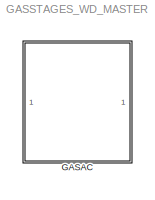
MODEL GASSTAGES_WD_MASTER
KIND library
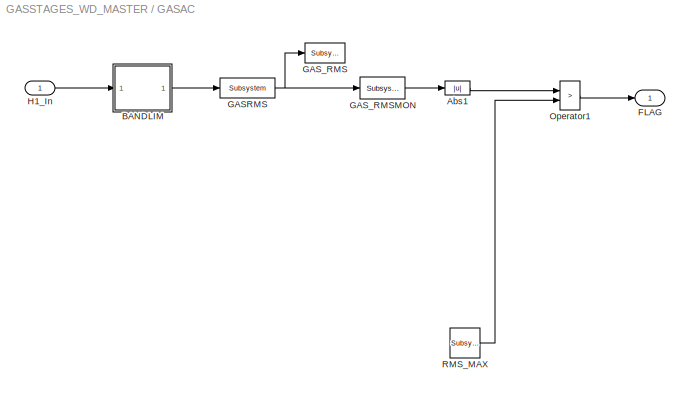
BLOCK [SubSystem] GASAC
  Ports = [1, 1]
  RequestExecContextInheritance = off
  SID = 1
BLOCK [Abs] GASAC/Abs1
  SID = 6
  SaturateOnIntegerOverflow = off
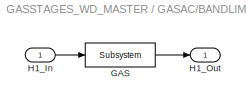
BLOCK [SubSystem] GASAC/BANDLIM
  Ports = [1, 1]
  RequestExecContextInheritance = off
  SID = 10
BLOCK [Reference] GASAC/BANDLIM/GAS  REF=cdsFilt/Subsystem
  AttributesFormatString = %<Tag>
  Description = Purpose:                                                                                                                                                                                                                                  \nStandard CDS IIR filter module.                                                                                                                                     ...<+1302ch>
  Ports = [1, 1]
  SID = 17
  SourceBlock = cdsFilt/Subsystem
  SourceType = SubSystem
  Tag = cdsFilt
BLOCK [Inport] GASAC/BANDLIM/H1_In
  IconDisplay = Port number
  SID = 11
BLOCK [Outport] GASAC/BANDLIM/H1_Out
  IconDisplay = Port number
  SID = 19
BLOCK [Outport] GASAC/FLAG
  IconDisplay = Port number
  SID = 41
BLOCK [Reference] GASAC/GASRMS  REF=cdsRms/Subsystem
  AttributesFormatString = %<Tag>
  Description = Purpose:                                   \nCalculate an RMS based on the input signal.
  Ports = [1, 1]
  SID = 35
  SourceBlock = cdsRms/Subsystem
  SourceType = SubSystem
  Tag = cdsRms
BLOCK [Reference] GASAC/GAS_RMS  REF=cdsTP/Subsystem
  AttributesFormatString = %<Tag>
  Ports = [1]
  SID = 36
  SourceBlock = cdsTP/Subsystem
  SourceType = SubSystem
  Tag = Test Point
BLOCK [Reference] GASAC/GAS_RMSMON  REF=cdsEpicsOut/Subsystem
  AttributesFormatString = %<Tag>
  Description = Purpose:                                          \nOutput a FE signal to an EPICS channel.           \n                                                  \nOperation:                                        \nTakes input value and passes it to EPICS record.  \n                                                  \nUsage:                                            \nName the part with the desired EPICS...<+14ch>
  Ports = [1, 1]
  SID = 37
  SourceBlock = cdsEpicsOut/Subsystem
  SourceType = SubSystem
  Tag = cdsEpicsOutput
BLOCK [Inport] GASAC/H1_In
  IconDisplay = Port number
  SID = 2
BLOCK [RelationalOperator] GASAC/Operator1
  InputSameDT = off
  Operator = >
  OutDataTypeStr = boolean
  Ports = [2, 1]
  SID = 29
BLOCK [Reference] GASAC/RMS_MAX  REF=cdsEpicsIn/Subsystem
  AttributesFormatString = %<Tag>
  Description = Purpose:                                                                              \nCreate an EPICS input channel connection to the FE realtime controls.                 \n                                                                                      \nOperation:                                                                            \nOutputs value from an EPICS ai record. Value is ...<+266ch>
  Ports = [0, 1]
  SID = 33
  SourceBlock = cdsEpicsIn/Subsystem
  SourceType = SubSystem
  Tag = cdsEpicsIn
LINE GASAC/Abs1:1 -> GASAC/Operator1:1
LINE GASAC/BANDLIM/GAS:1 -> GASAC/BANDLIM/H1_Out:1
LINE GASAC/BANDLIM/H1_In:1 -> GASAC/BANDLIM/GAS:1
LINE GASAC/BANDLIM:1 -> GASAC/GASRMS:1
NET GASAC/GASRMS:1 -> GASAC/GAS_RMS:1, GASAC/GAS_RMSMON:1
LINE GASAC/GAS_RMSMON:1 -> GASAC/Abs1:1
LINE GASAC/H1_In:1 -> GASAC/BANDLIM:1
LINE GASAC/Operator1:1 -> GASAC/FLAG:1
LINE GASAC/RMS_MAX:1 -> GASAC/Operator1:2
note: NET lines group one-source signal fan-out (src -> all destinations, sorted); 1:1 wires keep LINE
